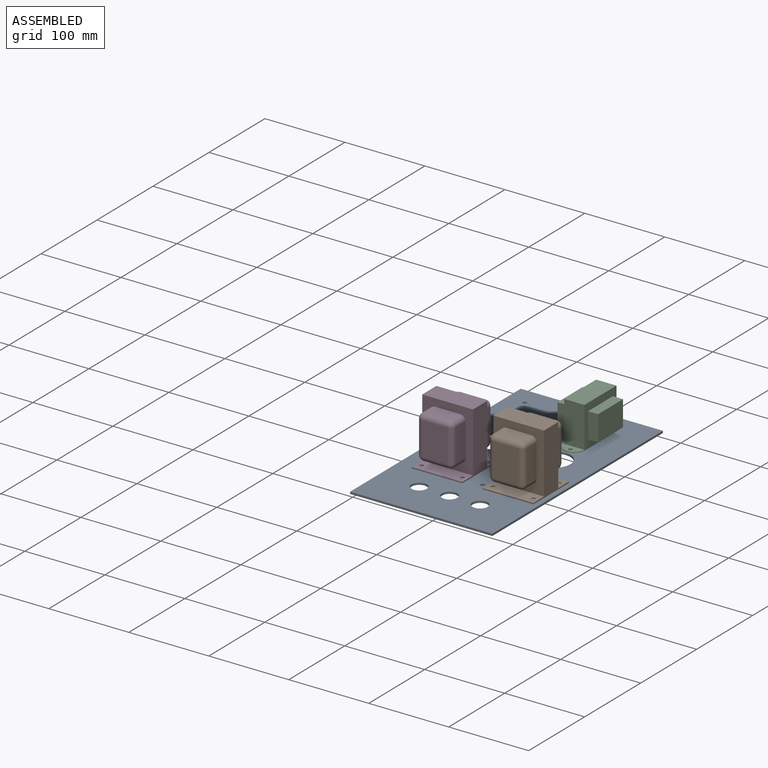
[diagram: assembled view]
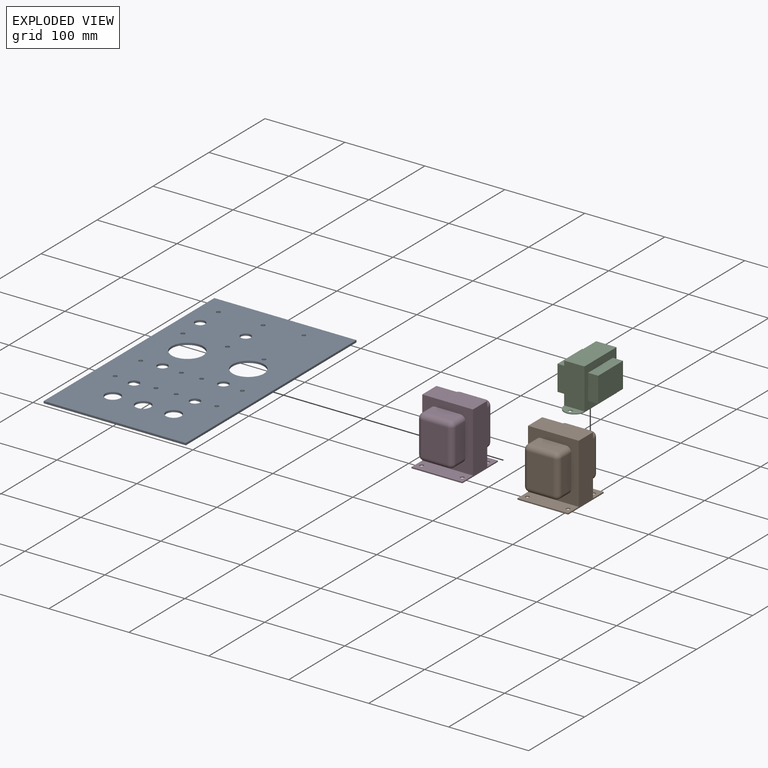
[diagram: exploded view]
GUIDED TOUR — MATED ASSEMBLY (Onshape document 58cc5d5c489119a4fe975b35, AutoMate assembly 58cc5d5c489119a4fe975b35_4ff2dbaa578759f0258da31a_5dbe429e52c0e875954663be_default)

This assembly has 4 components, labeled P0..P3 below (a component is one placed occurrence of a part; the same part can appear more than once), held together by 7 mates. A mate is a constraint between two components; its type names the relative motion it leaves free:
  CYLINDRICAL — leaves both rotation about and translation along the listed axis free,
  PARALLEL — keeps the two listed directions parallel,
  PLANAR — leaves sliding in the plane through the listed point (normal = the listed direction) and rotation about that normal free.
Axis/direction vectors are unit vectors and 'through' points are millimeter coordinates, both in the assembly's world frame.

MATES
  1. PARALLEL "Parallel 1": P3 <-> P0, direction (1.000, 0.000, 0.000) through (82.54, -190.49, 37.01) mm
  2. CYLINDRICAL "Cylindrical 1": P0 <-> P2, axis (0.000, 0.000, 1.000) through (127.00, -21.46, 0.00) mm
  3. PLANAR "Planar 2": P0 <-> P3, direction (0.000, 0.000, 1.000) through (25.40, -213.23, 0.00) mm
  4. PLANAR "Planar 1": P0 <-> P2, direction (0.000, 0.000, 1.000) through (89.13, -152.40, 0.00) mm
  5. PARALLEL "Parallel 2": P0 <-> P3, direction (0.000, 0.000, 1.000) through (89.13, -152.40, 0.00) mm
  6. CYLINDRICAL "Cylindrical 3": P3 <-> P0, axis (0.000, 0.000, 1.000) through (25.40, -213.23, 1.52) mm
  7. CYLINDRICAL "Cylindrical 2": P2 <-> P0, axis (0.000, 0.000, 1.000) through (127.00, -92.84, 1.00) mm

ASSEMBLY ORDER
  1. P3 — the base component [order verified]
  2. P1 [order verified]
  3. P2 [order verified]
  4. P0 [order verified]
Order-tag legend:
  [order verified] — this step's position reverses a verified removal order: the component was checked to insert without passing through the ones already placed.

Of the 4 components, 2 carry the full construction recipe — the FeatureScript program that regenerates the part's solid from scratch; the rest are supplied as boundary geometry only.
Each toured component is shown spotlighted twice — in the assembled view, then in the exploded view, where a leader line traces a displaced component back to its assembled socket (saturated green if recipe-attached, orange if geometry-only; every other component desaturated gray) — followed by its recipe or geometry summary and the mates that hold it.
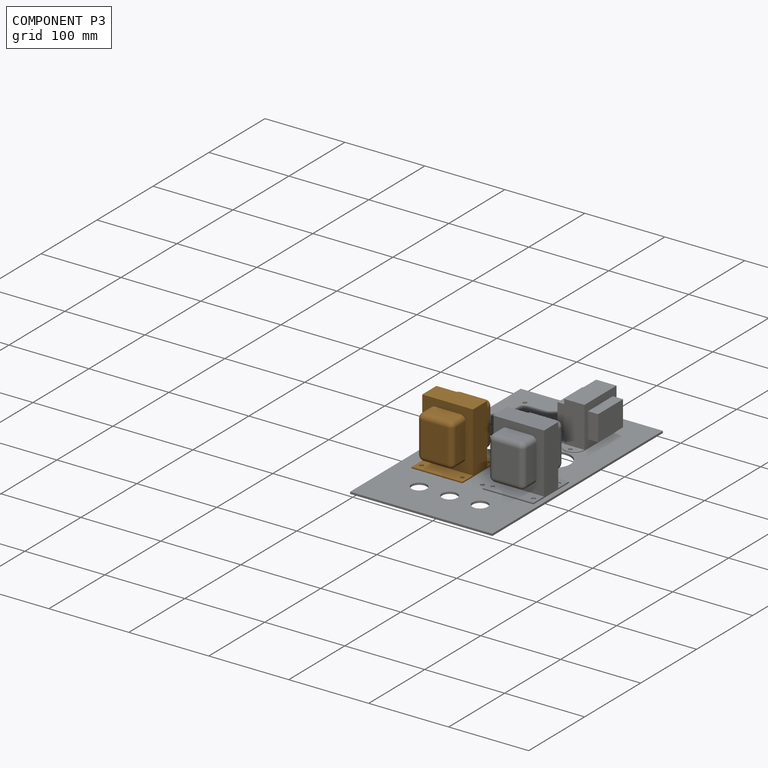
[diagram: component P3 — assembled]
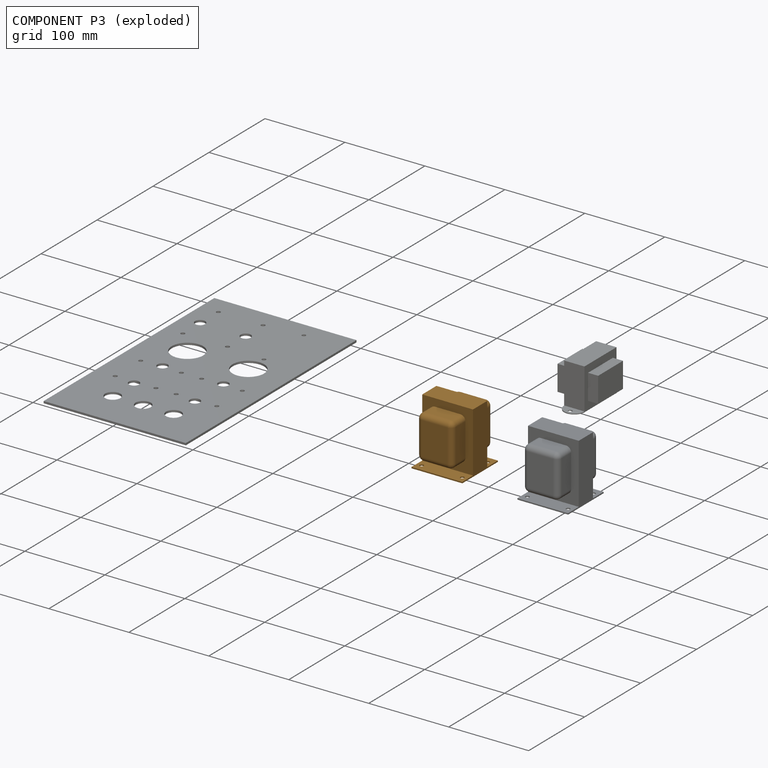
[diagram: component P3 — exploded]
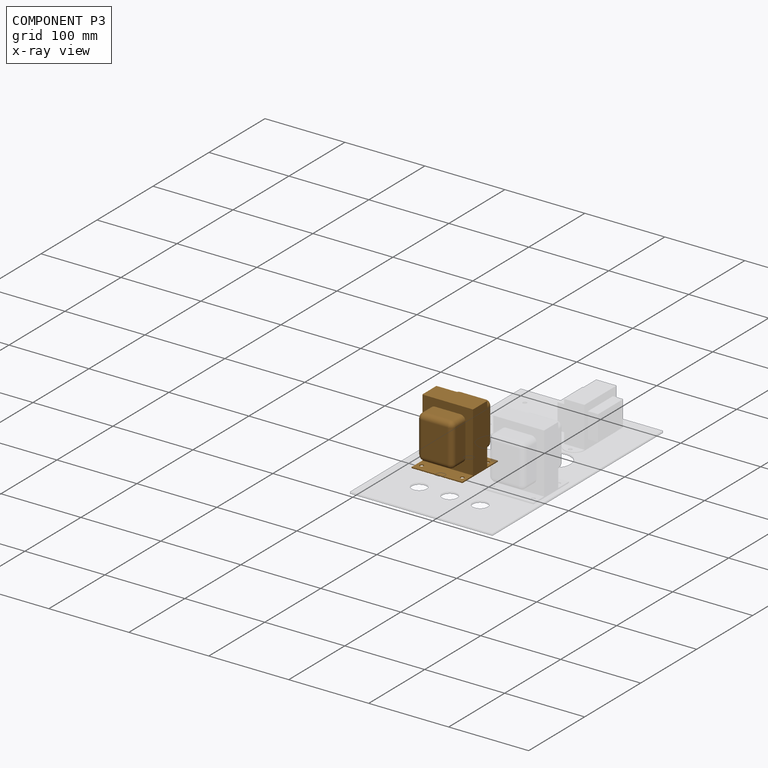
[diagram: component P3 — x-ray view]
COMPONENT P3 — geometry summary (no construction recipe available for this part):
  bounding box: 76.2 x 72.1 x 63.5 mm
  B-rep topology: 1 solid, 76 faces, 392 edges
  volume: 233928 mm^3 (67% of its bounding box)
  symmetry: 2-fold rotationally symmetric about the z axis; mirror-symmetric across its x mid-plane, y mid-plane
Held by: PARALLEL mate "Parallel 1" to P0; PLANAR mate "Planar 2" to P0; PARALLEL mate "Parallel 2" to P0; CYLINDRICAL mate "Cylindrical 3" to P0.
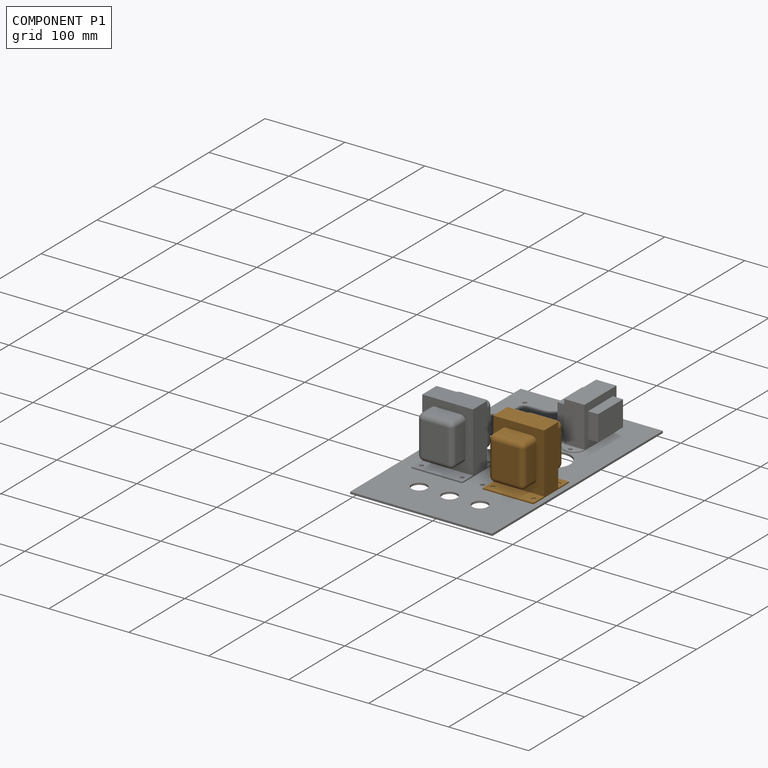
[diagram: component P1 — assembled]
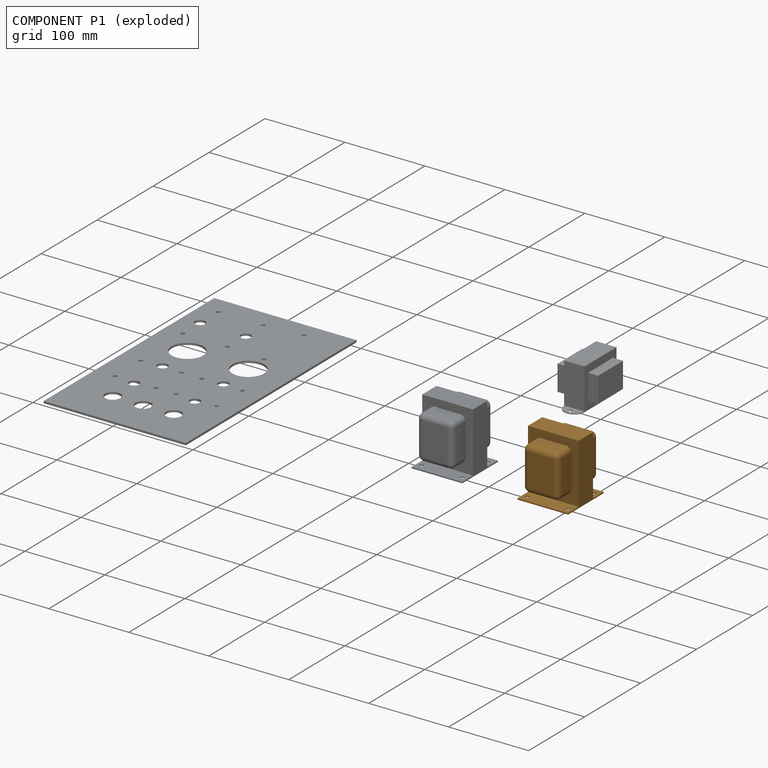
[diagram: component P1 — exploded]
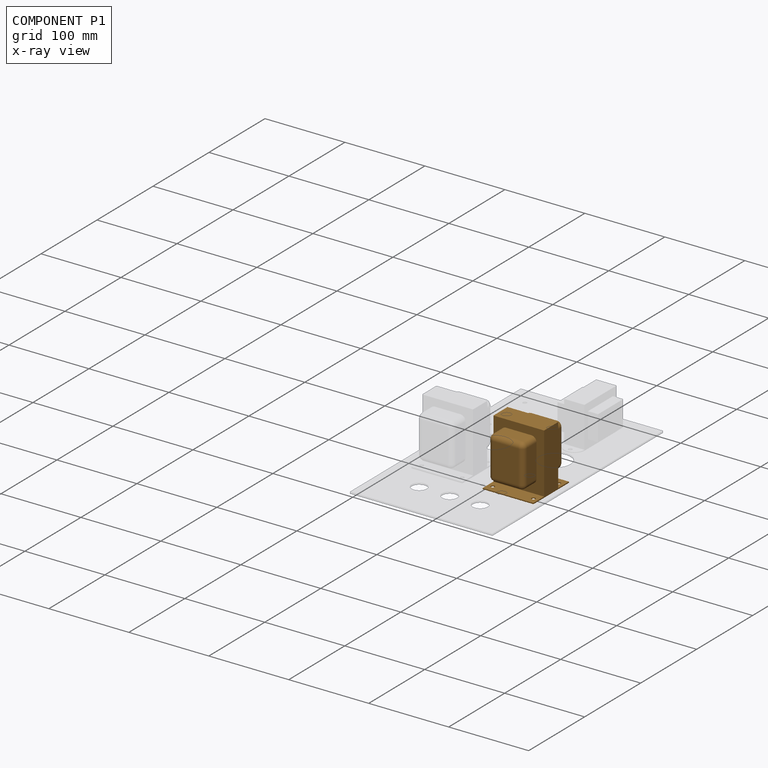
[diagram: component P1 — x-ray view]
COMPONENT P1 — geometry summary (no construction recipe available for this part):
  bounding box: 76.2 x 72.1 x 63.5 mm
  B-rep topology: 1 solid, 76 faces, 392 edges
  volume: 233928 mm^3 (67% of its bounding box)
  symmetry: 2-fold rotationally symmetric about the z axis; mirror-symmetric across its x mid-plane, y mid-plane
Held by: no mates (free).
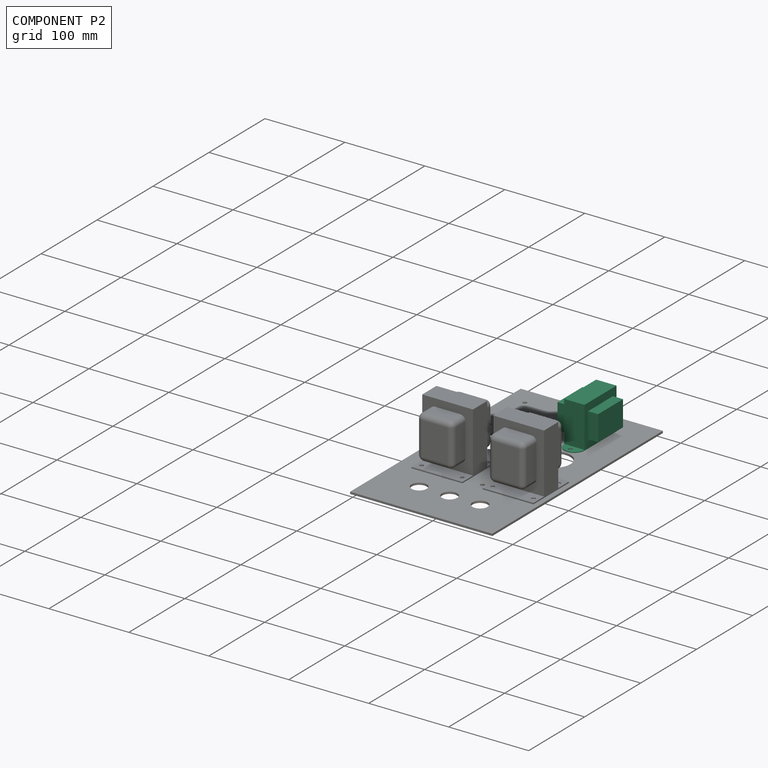
[diagram: component P2 — assembled]
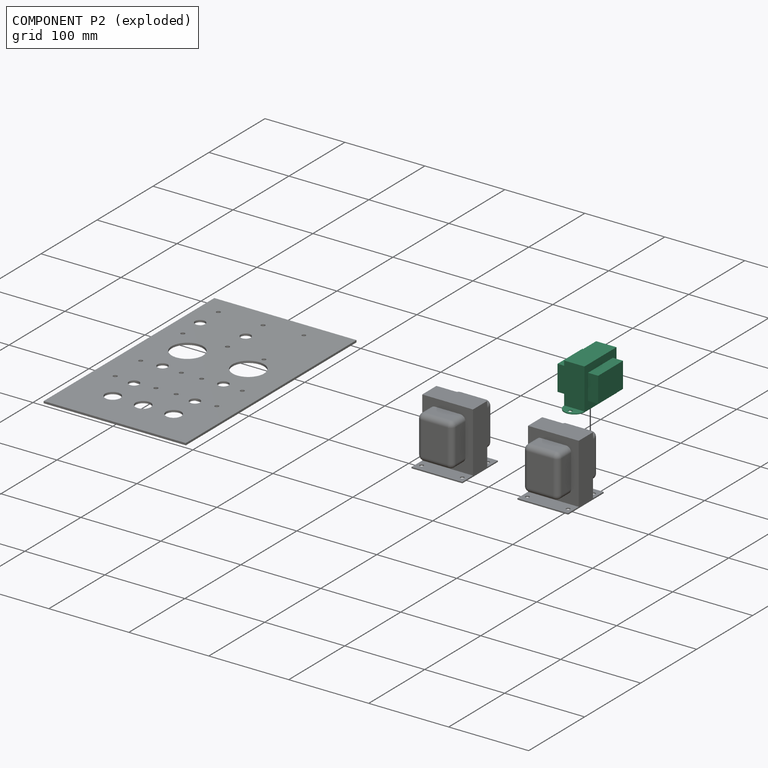
[diagram: component P2 — exploded]
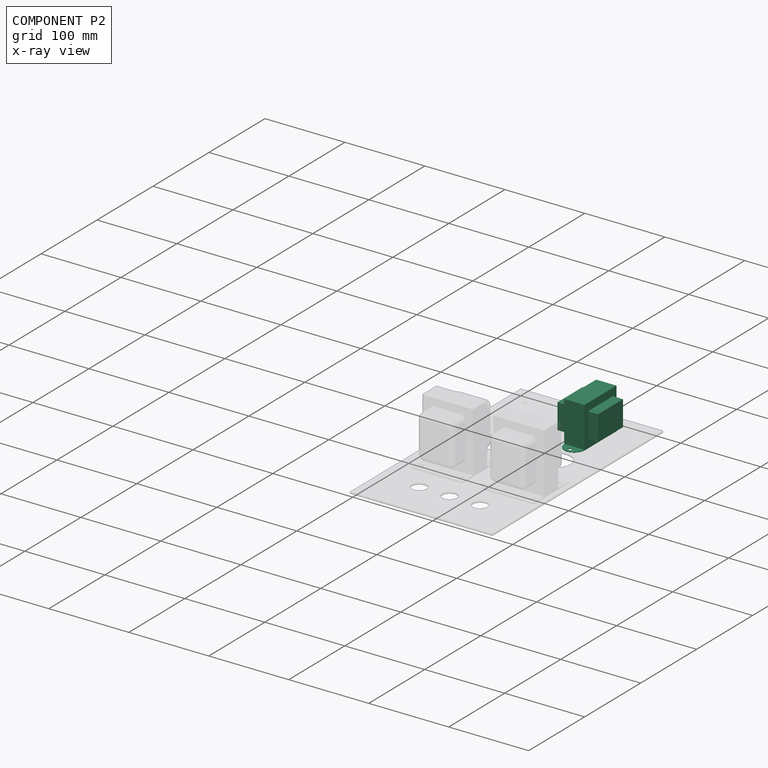
[diagram: component P2 — x-ray view]
COMPONENT P2 — recipe-attached (CADFS 00294332, mesh-verified: the recipe's output STEP matches this component's geometry to below the mesh-comparison resolution (tessellation chordal tolerance ~0.165 mm)).
Held by: CYLINDRICAL mate "Cylindrical 1" to P0; PLANAR mate "Planar 1" to P0; CYLINDRICAL mate "Cylindrical 2" to P0.
Construction recipe (FeatureScript — the CAD program that rebuilds this solid; sketch coordinates are in the units given by the * unit suffixes, e.g. mm):

FeatureScript 1511;
import(path : "onshape/std/geometry.fs", version : "1511.0");
import(path : "onshape/std/common.fs", version : "1511.0");
const mm = millimeter;
const VERTEX = EntityType.VERTEX;
const EDGE = EntityType.EDGE;
const FACE = EntityType.FACE;
const BODY = EntityType.BODY;
function v(x, y){return vector(x, y);}
function OD(order){return orderDisambiguation(order);}
function OSD(set){return originalSetDisambiguation(set);}
function TD(topology){return topologyDisambiguation(topology);}
function TDD(query){return trueDependencyDisambiguation(query);}
function sQuery(a, b, c) {return sketchEntityQuery(a, b, c);}

annotation { "Feature Type Name" : "Feature", "Feature Type Description" : "" }
export const myFeature = defineFeature(function(context is Context, id is Id, definition is map)
    precondition{}
    {
        {
            var Q0;
            Q0=qCreatedBy(makeId("Top.planeOp"),FACE);
            var sketch = newSketch(context, id + "F0", { "sketchPlane" : qUnion([Q0])});
            skLineSegment(sketch, "E0.bottom", {"start": v(-28.58, -12.7) * mm, "end": v(28.58, -12.7) * mm});
            skLineSegment(sketch, "E0.top", {"start": v(-28.58, 12.7) * mm, "end": v(28.57, 12.7) * mm});
            skLineSegment(sketch, "E0.left", {"start": v(-28.57, -12.7) * mm, "end": v(-28.58, 12.7) * mm});
            skLineSegment(sketch, "E0.right", {"start": v(28.58, -12.7) * mm, "end": v(28.57, 12.7) * mm});
            skCircle(sketch, "E1", {"center": v(-28.58, 0) * mm, "radius": 12.7 * mm});
            skCircle(sketch, "E2", {"center": v(28.58, 0) * mm, "radius": 12.7 * mm});
            skLineSegment(sketch, "E3", {"start": v(0, 12.7) * mm, "end": v(0, -12.7) * mm, "construction": true});
            skSolve(sketch);
        }
        {
            var Q0;
            {var subQ0=sQuery(id+"F0.wireOp",EDGE,"E0.left");Q0=makeQuery(id+"F0.imprint","IMPRINT",FACE,{"disambiguationData":[TD([[makeQuery(id+"F0.imprint","IMPRINT",EDGE,{"derivedFrom":subQ0}),1.0]])]});}
            var Q1;
            {var subQ0=sQuery(id+"F0.wireOp",EDGE,"E0.left");Q1=makeQuery(id+"F0.imprint","IMPRINT",FACE,{"disambiguationData":[TD([[makeQuery(id+"F0.imprint","IMPRINT",EDGE,{"derivedFrom":subQ0}),-1.0]])]});}
            var Q2;
            {var subQ0=sQuery(id+"F0.wireOp",EDGE,"E0.bottom");Q2=makeQuery(id+"F0.imprint","IMPRINT",FACE,{"disambiguationData":[TD([[makeQuery(id+"F0.imprint","IMPRINT",EDGE,{"derivedFrom":subQ0}),1.0]])]});}
            var Q3;
            {var subQ0=sQuery(id+"F0.wireOp",EDGE,"E0.right");Q3=makeQuery(id+"F0.imprint","IMPRINT",FACE,{"disambiguationData":[TD([[makeQuery(id+"F0.imprint","IMPRINT",EDGE,{"derivedFrom":subQ0}),1.0]])]});}
            var Q4;
            {var subQ0=sQuery(id+"F0.wireOp",EDGE,"E0.right");Q4=makeQuery(id+"F0.imprint","IMPRINT",FACE,{"disambiguationData":[TD([[makeQuery(id+"F0.imprint","IMPRINT",EDGE,{"derivedFrom":subQ0}),-1.0]])]});}
            extrude(context, id + "F1", {"entities" : qUnion([Q0, Q1, Q2, Q3, Q4]), "depth" : 1 * mm});
        }
        {
            var Q0;
            Q0=makeQuery(id+"F1.opExtrude","CAP_FACE",FACE,{"disambiguationData":[OSD([sQuery(id+"F0.wireOp",EDGE,"E0.bottom"),sQuery(id+"F0.wireOp",EDGE,"E0.top"),sQuery(id+"F0.wireOp",EDGE,"E1"),sQuery(id+"F0.wireOp",EDGE,"E2")])],"isStart":false});
            var sketch = newSketch(context, id + "F2", { "sketchPlane" : qUnion([Q0])});
            skPoint(sketch, "E4", {"position": v(-35.69, 0) * mm});
            skPoint(sketch, "E5", {"position": v(35.69, 0) * mm});
            skSolve(sketch);
        }
        {
            var Q0;
            Q0=sQuery(id+"F2.wireOp",VERTEX,"E4");
            var Q1;
            Q1=sQuery(id+"F2.wireOp",VERTEX,"E5");
            var Q2;
            Q2=makeQuery(id+"F1.opExtrude","SWEPT_BODY",BODY,{"disambiguationData":[OSD([sQuery(id+"F0.wireOp",EDGE,"E0.bottom"),sQuery(id+"F0.wireOp",EDGE,"E0.top"),sQuery(id+"F0.wireOp",EDGE,"E1"),sQuery(id+"F0.wireOp",EDGE,"E2")])]});
            hole(context, id + "F3", {"style" : HoleStyle.SIMPLE, "endStyle" : HoleEndStyle.THROUGH, "holeDiameter" : 4.76 * mm, "tappedDepth" : 12.7 * mm, "tapClearance" : 3, "locations" : qUnion([Q0, Q1]), "scope" : qUnion([Q2])});
        }
        {
            var Q0;
            Q0=makeQuery(id+"F1.opExtrude","CAP_FACE",FACE,{"disambiguationData":[OSD([sQuery(id+"F0.wireOp",EDGE,"E0.bottom"),sQuery(id+"F0.wireOp",EDGE,"E0.top"),sQuery(id+"F0.wireOp",EDGE,"E1"),sQuery(id+"F0.wireOp",EDGE,"E2")])],"isStart":false});
            var sketch = newSketch(context, id + "F4", { "sketchPlane" : qUnion([Q0])});
            skLineSegment(sketch, "E6.bottom", {"start": v(-28.58, 12.7) * mm, "end": v(28.58, 12.7) * mm});
            skLineSegment(sketch, "E6.top", {"start": v(-28.58, -12.7) * mm, "end": v(28.58, -12.7) * mm});
            skLineSegment(sketch, "E6.left", {"start": v(-28.58, 12.7) * mm, "end": v(-28.58, -12.7) * mm});
            skLineSegment(sketch, "E6.right", {"start": v(28.58, 12.7) * mm, "end": v(28.58, -12.7) * mm});
            skSolve(sketch);
        }
        {
            var Q0;
            Q0=makeQuery(id+"F4.imprint","IMPRINT",FACE,{"disambiguationData":[TD([[makeQuery(id+"F4.imprint","IMPRINT",EDGE,{"derivedFrom":sQuery(id+"F4.wireOp",EDGE,"E6.bottom")}),-1.0]])]});
            extrude(context, id + "F5", {"entities" : qUnion([Q0]), "operationType" : NewBodyOperationType.ADD, "depth" : 50.8 * mm});
        }
        {
            var Q0;
            Q0=qCreatedBy(makeId("Front.planeOp"),FACE);
            var sketch = newSketch(context, id + "F6", { "sketchPlane" : qUnion([Q0])});
            skLineSegment(sketch, "E7.0.0", {"start": v(-28.58, 0) * mm, "end": v(28.58, 0) * mm});
            skLineSegment(sketch, "E7.0.1", {"start": v(28.58, 0) * mm, "end": v(28.58, 1) * mm});
            skLineSegment(sketch, "E7.0.2", {"start": v(28.58, 1) * mm, "end": v(28.58, 51.8) * mm});
            skLineSegment(sketch, "E7.0.3", {"start": v(28.58, 51.8) * mm, "end": v(-28.58, 51.8) * mm, "construction": true});
            skLineSegment(sketch, "E7.0.4", {"start": v(-28.58, 51.8) * mm, "end": v(-28.58, 1) * mm});
            skLineSegment(sketch, "E7.0.5", {"start": v(-28.58, 1) * mm, "end": v(-28.58, 0) * mm});
            skLineSegment(sketch, "E8.bottom", {"start": v(-22.23, 42.28) * mm, "end": v(22.23, 42.28) * mm});
            skLineSegment(sketch, "E8.top", {"start": v(-22.22, 10.52) * mm, "end": v(22.22, 10.53) * mm});
            skLineSegment(sketch, "E8.left", {"start": v(-22.22, 42.28) * mm, "end": v(-22.22, 10.53) * mm});
            skLineSegment(sketch, "E8.right", {"start": v(22.23, 42.28) * mm, "end": v(22.23, 10.53) * mm});
            skLineSegment(sketch, "E9", {"start": v(0, 51.8) * mm, "end": v(0, 0) * mm, "construction": true});
            skSolve(sketch);
        }
        {
            var Q0;
            Q0 = qSketchRegion(id + "F6", true);
            extrude(context, id + "F7", {"entities" : qUnion([Q0]), "operationType" : NewBodyOperationType.ADD, "endBound" : BoundingType.SYMMETRIC, "depth" : 50.8 * mm});
        }
    });
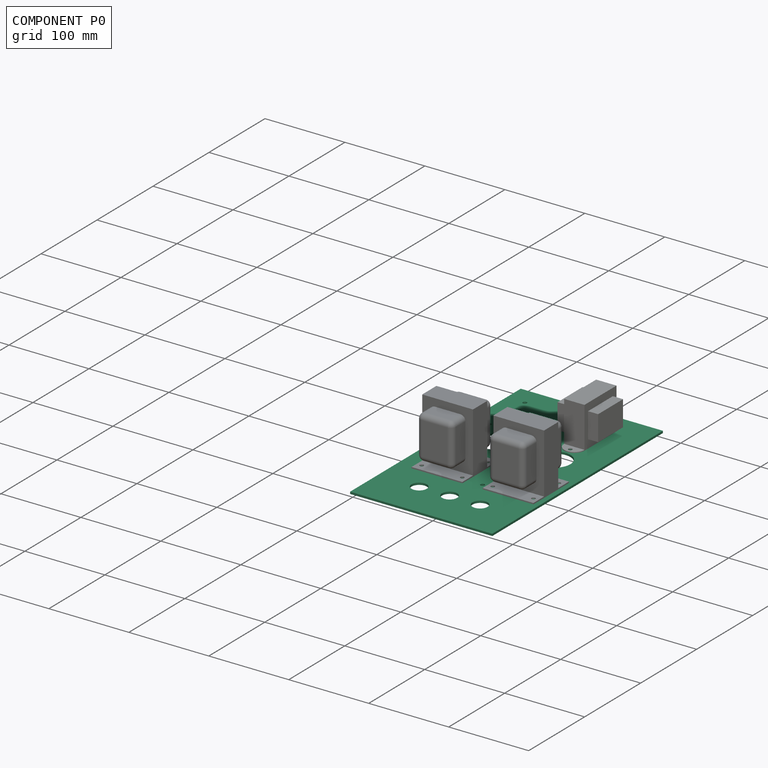
[diagram: component P0 — assembled]
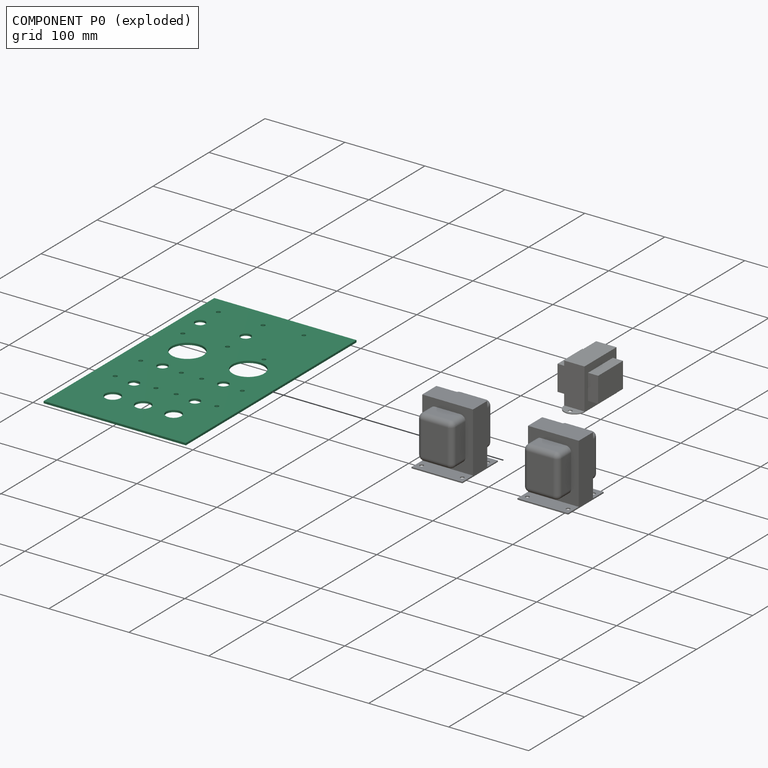
[diagram: component P0 — exploded]
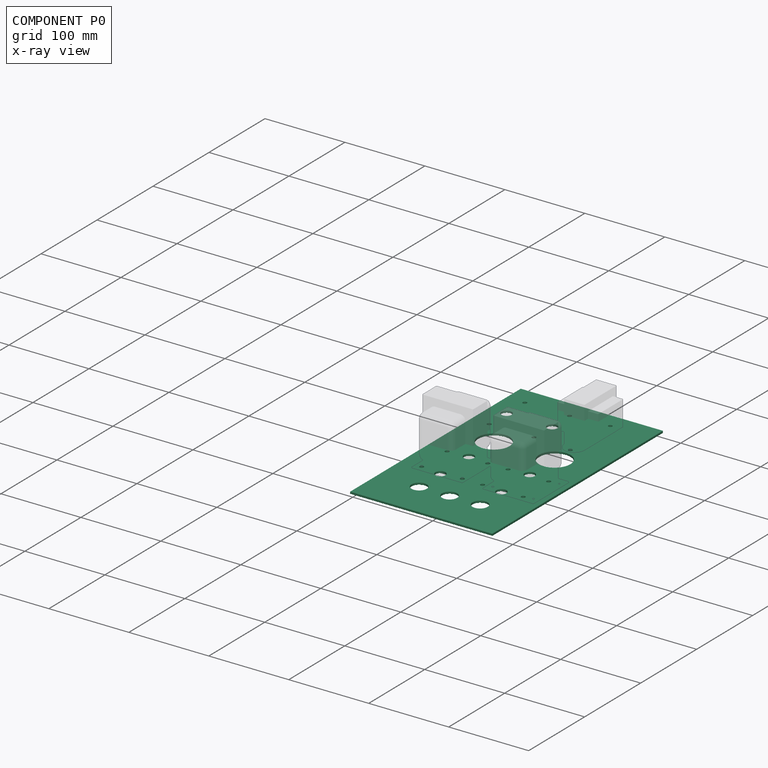
[diagram: component P0 — x-ray view]
COMPONENT P0 — recipe-attached (CADFS 00909330, mesh-verified: the recipe's output STEP matches this component's geometry to below the mesh-comparison resolution (tessellation chordal tolerance ~0.529 mm)).
Held by: PARALLEL mate "Parallel 1" to P3; CYLINDRICAL mate "Cylindrical 1" to P2; PLANAR mate "Planar 2" to P3; PLANAR mate "Planar 1" to P2; PARALLEL mate "Parallel 2" to P3; CYLINDRICAL mate "Cylindrical 3" to P3; CYLINDRICAL mate "Cylindrical 2" to P2.
Construction recipe (FeatureScript — the CAD program that rebuilds this solid; sketch coordinates are in the units given by the * unit suffixes, e.g. mm):

FeatureScript 1511;
import(path : "onshape/std/geometry.fs", version : "1511.0");
import(path : "onshape/std/common.fs", version : "1511.0");
const mm = millimeter;
const VERTEX = EntityType.VERTEX;
const EDGE = EntityType.EDGE;
const FACE = EntityType.FACE;
const BODY = EntityType.BODY;
function v(x, y){return vector(x, y);}
function OD(order){return orderDisambiguation(order);}
function OSD(set){return originalSetDisambiguation(set);}
function TD(topology){return topologyDisambiguation(topology);}
function TDD(query){return trueDependencyDisambiguation(query);}
function sQuery(a, b, c) {return sketchEntityQuery(a, b, c);}

annotation { "Feature Type Name" : "Feature", "Feature Type Description" : "" }
export const myFeature = defineFeature(function(context is Context, id is Id, definition is map)
    precondition{}
    {
        {
            var Q0;
            Q0=qCreatedBy(makeId("Top.planeOp"),FACE);
            var sketch = newSketch(context, id + "F0", { "sketchPlane" : qUnion([Q0])});
            skLineSegment(sketch, "E0.bottom", {"start": v(0, 0) * mm, "end": v(177.8, 0) * mm});
            skLineSegment(sketch, "E0.top", {"start": v(0, -304.8) * mm, "end": v(177.8, -304.8) * mm});
            skLineSegment(sketch, "E0.left", {"start": v(0, 0) * mm, "end": v(0, -304.8) * mm});
            skLineSegment(sketch, "E0.right", {"start": v(177.8, 0) * mm, "end": v(177.8, -304.8) * mm});
            skLineSegment(sketch, "E1.bottom", {"start": v(25.4, -167.77) * mm, "end": v(76.2, -167.77) * mm, "construction": true});
            skLineSegment(sketch, "E1.top", {"start": v(25.4, -213.23) * mm, "end": v(76.2, -213.23) * mm, "construction": true});
            skLineSegment(sketch, "E1.left", {"start": v(25.4, -167.77) * mm, "end": v(25.4, -213.23) * mm, "construction": true});
            skLineSegment(sketch, "E1.right", {"start": v(76.2, -167.77) * mm, "end": v(76.2, -213.23) * mm, "construction": true});
            skLineSegment(sketch, "E2.bottom", {"start": v(19.05, -154.94) * mm, "end": v(82.55, -154.94) * mm, "construction": true});
            skLineSegment(sketch, "E2.top", {"start": v(19.05, -226.06) * mm, "end": v(82.55, -226.06) * mm, "construction": true});
            skLineSegment(sketch, "E2.left", {"start": v(19.05, -154.94) * mm, "end": v(19.05, -226.06) * mm, "construction": true});
            skLineSegment(sketch, "E2.right", {"start": v(82.55, -154.94) * mm, "end": v(82.55, -226.06) * mm, "construction": true});
            skLineSegment(sketch, "E3", {"start": v(50.8, -154.94) * mm, "end": v(50.8, -226.06) * mm, "construction": true});
            skLineSegment(sketch, "E4", {"start": v(88.9, 0) * mm, "end": v(88.9, 45.6) * mm, "construction": true});
            skLineSegment(sketch, "E5", {"start": v(19.05, -190.5) * mm, "end": v(82.55, -190.5) * mm, "construction": true});
            skCircle(sketch, "E6", {"center": v(50.8, -254) * mm, "radius": 9.53 * mm});
            skCircle(sketch, "E7", {"center": v(127, -254) * mm, "radius": 9.53 * mm});
            skCircle(sketch, "E8", {"center": v(88.9, -254) * mm, "radius": 9.53 * mm});
            skLineSegment(sketch, "E9", {"start": v(50.8, -254) * mm, "end": v(127, -254) * mm, "construction": true});
            skCircle(sketch, "E10", {"center": v(25.4, -167.77) * mm, "radius": 2.54 * mm});
            skCircle(sketch, "E11", {"center": v(76.2, -167.77) * mm, "radius": 2.54 * mm});
            skCircle(sketch, "E12", {"center": v(76.2, -213.23) * mm, "radius": 2.54 * mm});
            skCircle(sketch, "E13", {"center": v(25.4, -213.23) * mm, "radius": 2.54 * mm});
            skCircle(sketch, "E14", {"center": v(50.8, -165.1) * mm, "radius": 6.35 * mm});
            skCircle(sketch, "E15.MirrorC", {"center": v(50.8, -215.9) * mm, "radius": 6.35 * mm});
            skCircle(sketch, "E16.MirrorC", {"center": v(152.4, -167.77) * mm, "radius": 2.54 * mm});
            skCircle(sketch, "E17.MirrorC", {"center": v(101.6, -167.77) * mm, "radius": 2.54 * mm});
            skCircle(sketch, "E18.MirrorC", {"center": v(101.6, -213.23) * mm, "radius": 2.54 * mm});
            skCircle(sketch, "E19.MirrorC", {"center": v(152.4, -213.23) * mm, "radius": 2.54 * mm});
            skCircle(sketch, "E20.MirrorC", {"center": v(127, -215.9) * mm, "radius": 6.35 * mm});
            skCircle(sketch, "E21.MirrorC", {"center": v(127, -165.1) * mm, "radius": 6.35 * mm});
            skLineSegment(sketch, "E22.MirrorCS", {"start": v(127, -154.94) * mm, "end": v(127, -226.06) * mm, "construction": true});
            skLineSegment(sketch, "E23.MirrorCS", {"start": v(152.4, -167.77) * mm, "end": v(152.4, -213.23) * mm, "construction": true});
            skLineSegment(sketch, "E24.MirrorCS", {"start": v(152.4, -213.23) * mm, "end": v(101.6, -213.23) * mm, "construction": true});
            skLineSegment(sketch, "E25.MirrorCS", {"start": v(101.6, -167.77) * mm, "end": v(101.6, -213.23) * mm, "construction": true});
            skLineSegment(sketch, "E26.MirrorCS", {"start": v(158.75, -190.5) * mm, "end": v(95.25, -190.5) * mm, "construction": true});
            skLineSegment(sketch, "E27.MirrorCS", {"start": v(158.75, -154.94) * mm, "end": v(95.25, -154.94) * mm, "construction": true});
            skLineSegment(sketch, "E28.MirrorCS", {"start": v(152.4, -167.77) * mm, "end": v(101.6, -167.77) * mm, "construction": true});
            skLineSegment(sketch, "E29.MirrorCS", {"start": v(95.25, -154.94) * mm, "end": v(95.25, -226.06) * mm, "construction": true});
            skLineSegment(sketch, "E30.MirrorCS", {"start": v(158.75, -226.06) * mm, "end": v(95.25, -226.06) * mm, "construction": true});
            skLineSegment(sketch, "E31.MirrorCS", {"start": v(158.75, -154.94) * mm, "end": v(158.75, -226.06) * mm, "construction": true});
            skLineSegment(sketch, "E32.bottom", {"start": v(22.85, -25.4) * mm, "end": v(78.75, -25.4) * mm, "construction": true});
            skLineSegment(sketch, "E32.top", {"start": v(22.85, -88.9) * mm, "end": v(78.75, -88.9) * mm, "construction": true});
            skLineSegment(sketch, "E32.left", {"start": v(22.85, -25.4) * mm, "end": v(22.85, -88.9) * mm, "construction": true});
            skLineSegment(sketch, "E32.right", {"start": v(78.75, -25.4) * mm, "end": v(78.75, -88.9) * mm, "construction": true});
            skLineSegment(sketch, "E33", {"start": v(22.85, -57.15) * mm, "end": v(78.75, -57.15) * mm, "construction": true});
            skCircle(sketch, "E34", {"center": v(22.28, -57.15) * mm, "radius": 6.35 * mm});
            skCircle(sketch, "E35", {"center": v(79.32, -57.15) * mm, "radius": 6.35 * mm});
            skLineSegment(sketch, "E36", {"start": v(50.8, -25.4) * mm, "end": v(50.8, -88.9) * mm, "construction": true});
            skCircle(sketch, "E37", {"center": v(22.85, -25.4) * mm, "radius": 2.54 * mm});
            skCircle(sketch, "E38", {"center": v(78.75, -25.4) * mm, "radius": 2.54 * mm});
            skCircle(sketch, "E39", {"center": v(22.85, -88.9) * mm, "radius": 2.54 * mm});
            skCircle(sketch, "E40", {"center": v(78.75, -88.9) * mm, "radius": 2.54 * mm});
            skCircle(sketch, "E41", {"center": v(127, -21.46) * mm, "radius": 2.38 * mm});
            skCircle(sketch, "E42", {"center": v(127, -92.84) * mm, "radius": 2.38 * mm});
            skLineSegment(sketch, "E43", {"start": v(127, -21.46) * mm, "end": v(127, -92.84) * mm, "construction": true});
            skLineSegment(sketch, "E44.bottom", {"start": v(101.6, -31.75) * mm, "end": v(152.4, -31.75) * mm, "construction": true});
            skLineSegment(sketch, "E44.top", {"start": v(101.6, -82.55) * mm, "end": v(152.4, -82.55) * mm, "construction": true});
            skLineSegment(sketch, "E44.left", {"start": v(101.6, -31.75) * mm, "end": v(101.6, -82.55) * mm, "construction": true});
            skLineSegment(sketch, "E44.right", {"start": v(152.4, -31.75) * mm, "end": v(152.4, -82.55) * mm, "construction": true});
            skCircle(sketch, "E45", {"center": v(127, -120.65) * mm, "radius": 19.69 * mm});
            skCircle(sketch, "E46", {"center": v(50.8, -120.65) * mm, "radius": 19.69 * mm});
            skSolve(sketch);
        }
        {
            var Q0;
            Q0=makeQuery(id+"F0.imprint","IMPRINT",FACE,{"disambiguationData":[TD([[makeQuery(id+"F0.imprint","IMPRINT",EDGE,{"derivedFrom":sQuery(id+"F0.wireOp",EDGE,"E0.bottom")}),-1.0]])]});
            extrude(context, id + "F1", {"entities" : qUnion([Q0]), "depth" : 2.54 * mm});
        }
    });
PROVENANCE & LICENSES
Assembly (occurrences, transforms, mates, per-part STEP geometry): AutoMate dataset, Zenodo record 7776208, CC0.
Construction recipes: CADFS (HuggingFace VladPyatov/CADFS, CC-BY-4.0, layered over the ABC dataset), FeatureScript reconstruction programs keyed by ABC model id.
Join: ABC meta listings map ABC model id -> Onshape documentId; within a shared document, parts are matched by geometric signature (bounding-box dims + volume at 0.1% relative tolerance, exact B-rep face/solid counts).
Verification: 2 of this assembly's 4 components carry a recipe attachment, and every attachment is mesh-verified: the CADFS STEP and the AutoMate member STEP were compared as meshes in their shared local frame (symmetric sampled-point-to-mesh distance); worst across the 2 attachments: below the mesh-comparison resolution (tessellation chordal tolerance ~0.529 mm) on a 353 mm part.
Renders: orthographic iso camera (az 35 / el 25); the floor grid conveys scale (grid pitch printed in each image; no ruler). In the exploded view each component is displaced by its stored offset vector: the offsets alone carry the explosion direction (mate normal/axis signs are not orientation cues and do not encode it), and separation distances are assigned per mate-chain, not proportionally to assembly-order depth.
